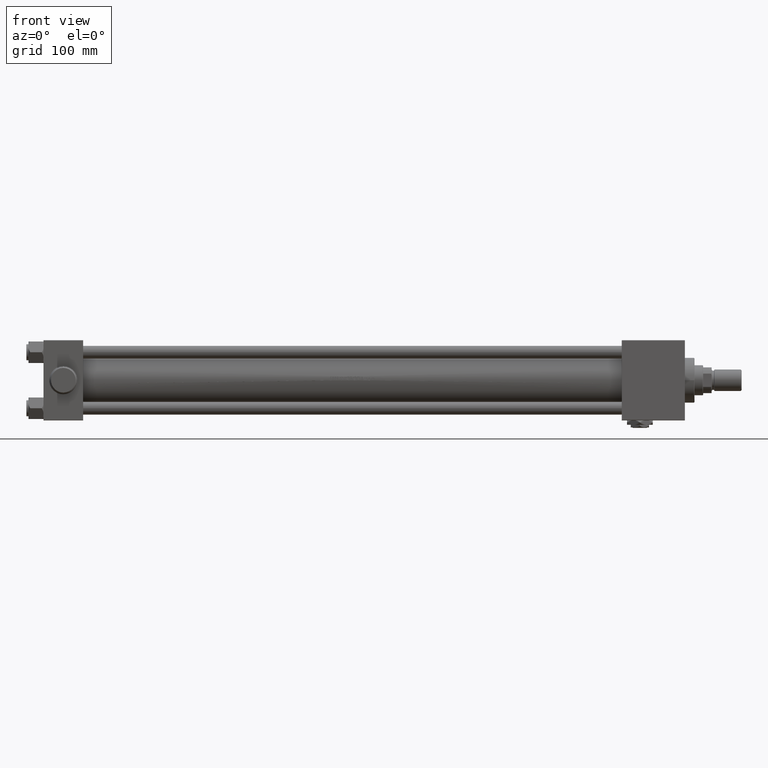
[diagram: clean part render]
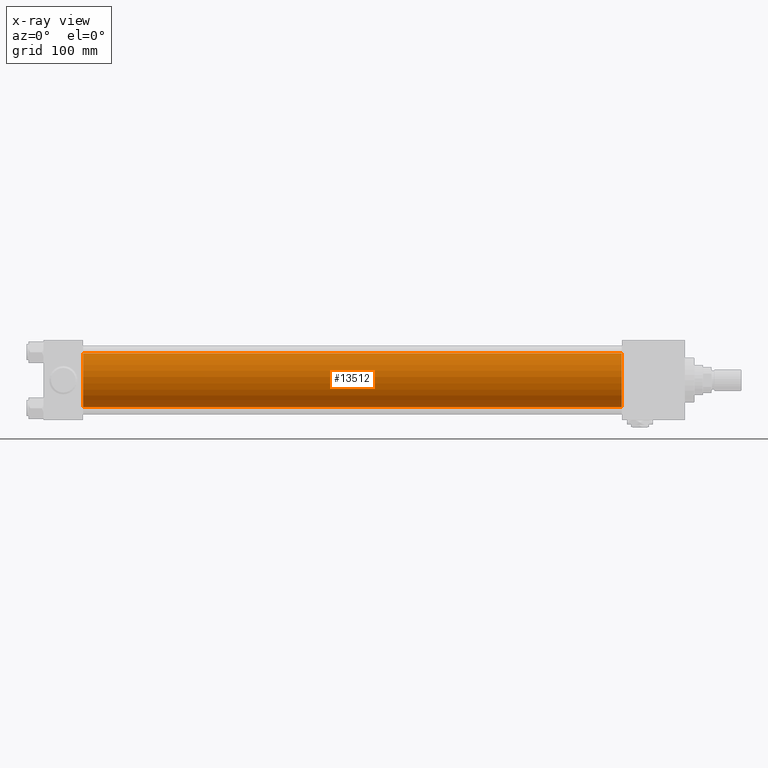
[diagram: x-ray — body ghosted, one internal face saturated and labeled with its STEP entity id]
A machine part, front view, then the same camera in x-ray: the body is ghosted and one INTERNAL B-rep face — a face not visible from any outside direction — is saturated and labeled: STEP entity #13512.
In plain terms, the highlighted cylindrical surface (edge-blend (fillet) strip) has radius 25 mm, axis along (-1, -0, -0).
Its self-contained STEP definition (entity closure, byte-faithful):
#1915 = EDGE_CURVE ( 'NONE', #23009, #32174, #38398, .T. ) ;
#1938 = CARTESIAN_POINT ( 'NONE',  ( 37.00000000000000000, -4.078299540852309983E-16, -25.00000000000000000 ) ) ;
#2749 = VERTEX_POINT ( 'NONE', #26078 ) ;
#2957 = CARTESIAN_POINT ( 'NONE',  ( 540.0000000000000000, -4.078299540852309983E-16, -25.00000000000000000 ) ) ;
#3945 = EDGE_LOOP ( 'NONE', ( #41800, #30908, #47629, #44754 ) ) ;
#8282 = CARTESIAN_POINT ( 'NONE',  ( 37.00000000000000000, -3.469446951953614189E-15, 25.00000000000000000 ) ) ;
#8917 = EDGE_CURVE ( 'NONE', #2749, #32174, #21798, .T. ) ;
#12246 = CYLINDRICAL_SURFACE ( 'NONE', #26801, 25.00000000000000000 ) ;
#12428 = EDGE_CURVE ( 'NONE', #36943, #23009, #25649, .T. ) ;
#13512 = ADVANCED_FACE ( 'NONE', ( #42707 ), #12246, .F. ) ;
#13628 = DIRECTION ( 'NONE',  ( -1.000000000000000000, -0.000000000000000000, -0.000000000000000000 ) ) ;
#21196 = CARTESIAN_POINT ( 'NONE',  ( 540.0000000000000000, -3.469446951953614189E-15, 25.00000000000000000 ) ) ;
#21798 = LINE ( 'NONE', #2957, #29813 ) ;
#22044 = DIRECTION ( 'NONE',  ( 1.000000000000000000, 0.000000000000000000, 0.000000000000000000 ) ) ;
#22853 = CIRCLE ( 'NONE', #29971, 25.00000000000000000 ) ;
#23009 = VERTEX_POINT ( 'NONE', #8282 ) ;
#23387 = CARTESIAN_POINT ( 'NONE',  ( 540.0000000000000000, -3.469446951953614189E-15, 0.000000000000000000 ) ) ;
#23395 = AXIS2_PLACEMENT_3D ( 'NONE', #33166, #22044, #29693 ) ;
#25649 = LINE ( 'NONE', #21196, #33095 ) ;
#26078 = CARTESIAN_POINT ( 'NONE',  ( 540.0000000000000000, -4.078299540852309983E-16, -25.00000000000000000 ) ) ;
#26801 = AXIS2_PLACEMENT_3D ( 'NONE', #30154, #31066, #42208 ) ;
#29693 = DIRECTION ( 'NONE',  ( 0.000000000000000000, 0.000000000000000000, -1.000000000000000000 ) ) ;
#29813 = VECTOR ( 'NONE', #13628, 1000.000000000000000 ) ;
#29971 = AXIS2_PLACEMENT_3D ( 'NONE', #23387, #39201, #43175 ) ;
#30154 = CARTESIAN_POINT ( 'NONE',  ( 540.0000000000000000, -3.469446951953614189E-15, 0.000000000000000000 ) ) ;
#30785 = EDGE_CURVE ( 'NONE', #36943, #2749, #22853, .T. ) ;
#30908 = ORIENTED_EDGE ( 'NONE', *, *, #8917, .T. ) ;
#31066 = DIRECTION ( 'NONE',  ( -1.000000000000000000, -0.000000000000000000, -0.000000000000000000 ) ) ;
#32174 = VERTEX_POINT ( 'NONE', #1938 ) ;
#32577 = DIRECTION ( 'NONE',  ( -1.000000000000000000, -0.000000000000000000, -0.000000000000000000 ) ) ;
#33095 = VECTOR ( 'NONE', #32577, 1000.000000000000000 ) ;
#33166 = CARTESIAN_POINT ( 'NONE',  ( 37.00000000000000000, -3.469446951953614189E-15, 0.000000000000000000 ) ) ;
#36943 = VERTEX_POINT ( 'NONE', #41796 ) ;
#38398 = CIRCLE ( 'NONE', #23395, 25.00000000000000000 ) ;
#39201 = DIRECTION ( 'NONE',  ( 1.000000000000000000, 0.000000000000000000, 0.000000000000000000 ) ) ;
#41796 = CARTESIAN_POINT ( 'NONE',  ( 540.0000000000000000, -3.469446951953614189E-15, 25.00000000000000000 ) ) ;
#41800 = ORIENTED_EDGE ( 'NONE', *, *, #30785, .T. ) ;
#42208 = DIRECTION ( 'NONE',  ( 0.000000000000000000, 0.000000000000000000, 1.000000000000000000 ) ) ;
#42707 = FACE_OUTER_BOUND ( 'NONE', #3945, .T. ) ;
#43175 = DIRECTION ( 'NONE',  ( 0.000000000000000000, 0.000000000000000000, -1.000000000000000000 ) ) ;
#44754 = ORIENTED_EDGE ( 'NONE', *, *, #12428, .F. ) ;
#47629 = ORIENTED_EDGE ( 'NONE', *, *, #1915, .F. ) ;